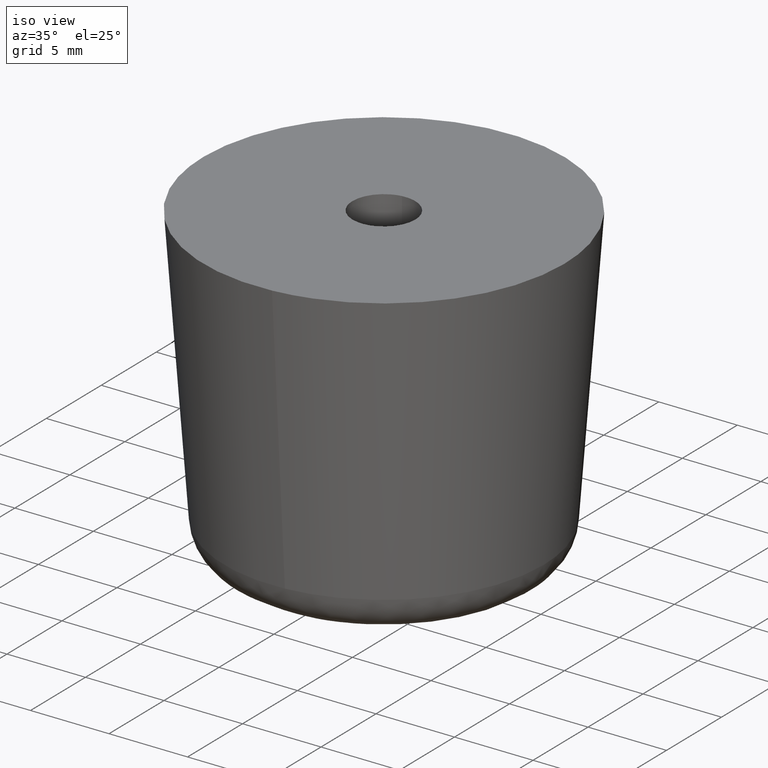
[diagram: clean part render]
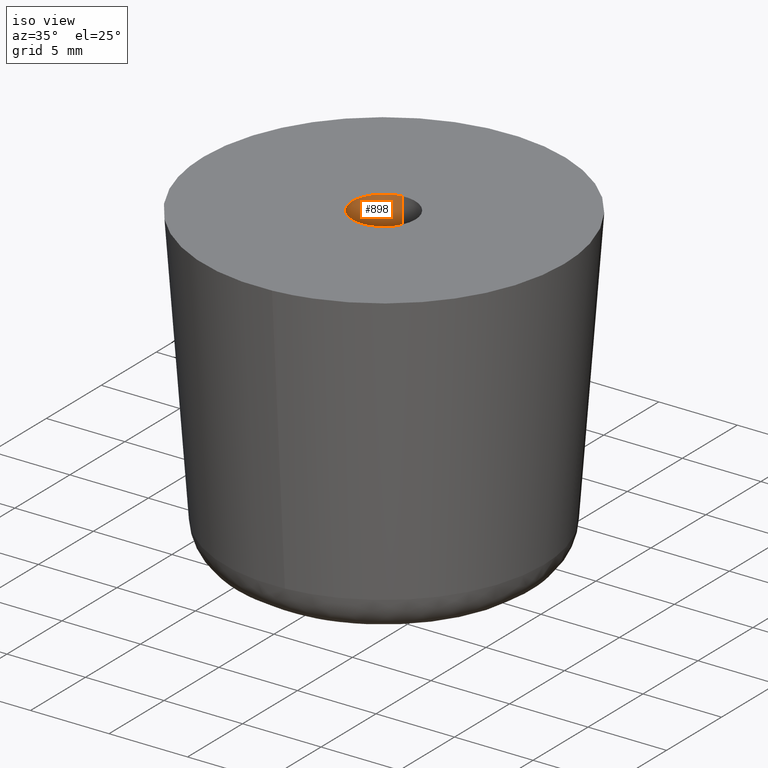
[diagram: same view with one face highlighted and labeled with its STEP entity id]
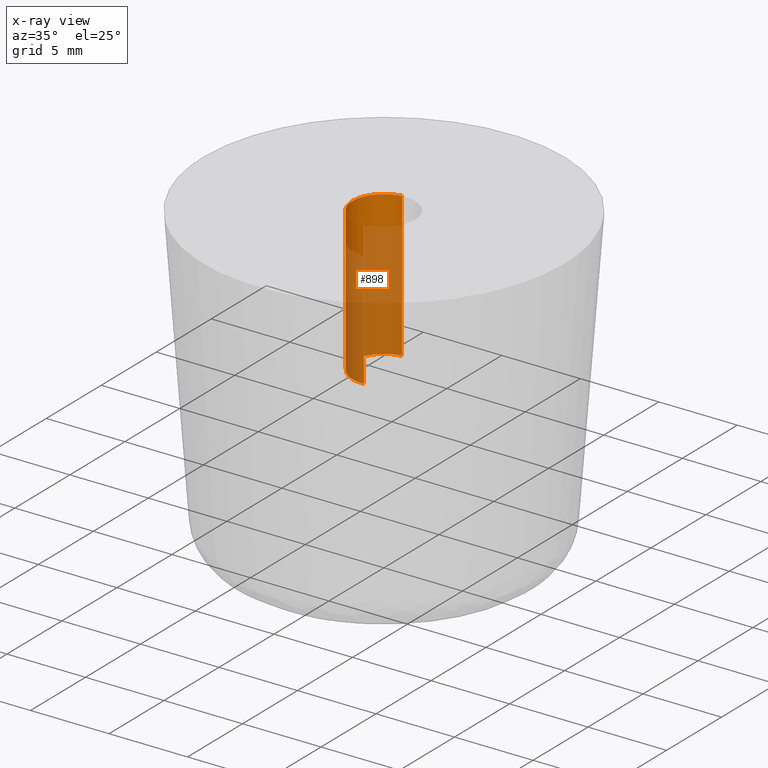
[diagram: x-ray of the same camera — body ghosted, the highlighted face saturated]
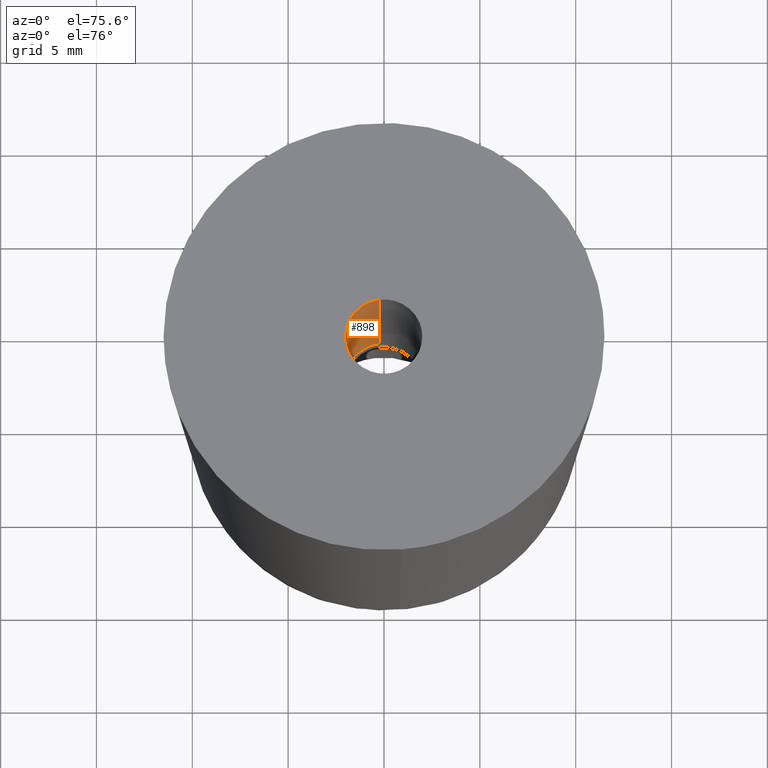
[diagram: same view with one face highlighted and labeled with its STEP entity id]
A machine part, iso view. The second image highlights one B-rep face of the part: STEP entity #898.
The next image is the same camera in x-ray: the body ghosted, the highlighted face saturated — about 77% of this face is hidden behind the body in this view.
A second angle (auxiliary view) of the same face is appended — the face is thin or edge-on in the first view.
In plain terms, the highlighted face is a freeform B-spline surface patch.
Its self-contained STEP definition (entity closure, byte-faithful):
#735=CARTESIAN_POINT('',(-0.236065886624471,1.986019359715669,20.000000000000011));
#736=VERTEX_POINT('',#735);
#754=CARTESIAN_POINT('',(-0.236065917800784,1.986019356009974,10.799999999999800));
#755=VERTEX_POINT('',#754);
#756=CARTESIAN_POINT('',(-0.236065886624471,1.986019359715669,20.000000000000011));
#757=CARTESIAN_POINT('',(-0.236065917800784,1.986019356009974,10.799999999999800));
#758=QUASI_UNIFORM_CURVE('',1,(#756,#757),.UNSPECIFIED.,.F.,.U.);
#759=EDGE_CURVE('',#736,#755,#758,.T.);
#778=CARTESIAN_POINT('',(0.122097079102479,-1.996269596841730,10.799999999999800));
#779=VERTEX_POINT('',#778);
#793=CARTESIAN_POINT('',(0.122097079102479,-1.996269596841730,20.0));
#794=VERTEX_POINT('',#793);
#795=CARTESIAN_POINT('',(0.122097079102479,-1.996269596841730,20.0));
#796=CARTESIAN_POINT('',(0.122097079102479,-1.996269596841730,10.799999999999800));
#797=QUASI_UNIFORM_CURVE('',1,(#795,#796),.UNSPECIFIED.,.F.,.U.);
#798=EDGE_CURVE('',#794,#779,#797,.T.);
#816=CARTESIAN_POINT('',(0.122097079069714,-1.996269596843733,20.230000000000011));
#817=CARTESIAN_POINT('',(-1.874172517774020,-2.118366675913447,20.230000000000004));
#818=CARTESIAN_POINT('',(-1.996269596843733,-0.122097079069714,20.230000000000011));
#819=CARTESIAN_POINT('',(-2.111572393465055,1.763086981679002,20.230000000000008));
#820=CARTESIAN_POINT('',(-0.236068469313517,1.986019052727332,20.230000000000015));
#821=CARTESIAN_POINT('',(0.122097079069714,-1.996269596843733,10.564249999999790));
#822=CARTESIAN_POINT('',(-1.874172517774020,-2.118366675913447,10.564249999999793));
#823=CARTESIAN_POINT('',(-1.996269596843733,-0.122097079069714,10.564249999999790));
#824=CARTESIAN_POINT('',(-2.111572393465055,1.763086981679002,10.564249999999793));
#825=CARTESIAN_POINT('',(-0.236068469313517,1.986019052727332,10.564249999999797));
#833=(BOUNDED_SURFACE()B_SPLINE_SURFACE(2,1,((#816,#821),(#817,#822),(#818,#823),(#819,#824),(#820,#825)),.UNSPECIFIED.,.F.,.F.,.U.)B_SPLINE_SURFACE_WITH_KNOTS((3,2,3),(2,2),(0.0,3.313708498984759,6.494868658010128),(0.0,9.665750000000216),.UNSPECIFIED.)GEOMETRIC_REPRESENTATION_ITEM()RATIONAL_B_SPLINE_SURFACE(((1.0,1.0),(0.707106781186548,0.707106781186548),(1.0,1.0),(0.718822509939086,0.718822509939086),(0.977505800795127,0.977505800795127)))REPRESENTATION_ITEM('')SURFACE());
#834=CARTESIAN_POINT('',(-2.0,0.0,20.0));
#835=VERTEX_POINT('',#834);
#836=CARTESIAN_POINT('',(-2.0,0.0,20.0));
#837=CARTESIAN_POINT('',(-2.000000000000000,1.776351378192379,20.0));
#838=CARTESIAN_POINT('',(-0.236065886624471,1.986019359715669,20.000000000000014));
#846=(BOUNDED_CURVE()B_SPLINE_CURVE(2,(#836,#837,#838),.UNSPECIFIED.,.F.,.U.)B_SPLINE_CURVE_WITH_KNOTS((3,3),(0.0,0.229562693293432),.UNSPECIFIED.)CURVE()GEOMETRIC_REPRESENTATION_ITEM()RATIONAL_B_SPLINE_CURVE((1.0,0.731050575367205,0.956027184961797))REPRESENTATION_ITEM(''));
#847=EDGE_CURVE('',#835,#736,#846,.T.);
#848=ORIENTED_EDGE('',*,*,#847,.F.);
#849=CARTESIAN_POINT('',(0.122097079102479,-1.996269596841730,20.0));
#850=CARTESIAN_POINT('',(0.061105526630035,-2.0,20.0));
#851=CARTESIAN_POINT('',(0.0,-2.0,20.0));
#852=CARTESIAN_POINT('',(-2.000000000000000,-2.000000000000000,19.999999999999996));
#853=CARTESIAN_POINT('',(-2.0,0.0,20.0));
#861=(BOUNDED_CURVE()B_SPLINE_CURVE(2,(#849,#850,#851,#852,#853),.UNSPECIFIED.,.F.,.U.)B_SPLINE_CURVE_WITH_KNOTS((3,2,3),(0.739332962236304,0.750000000000000,1.0),.UNSPECIFIED.)CURVE()GEOMETRIC_REPRESENTATION_ITEM()RATIONAL_B_SPLINE_CURVE((0.976072041661062,0.987502787896746,1.0,0.707106781186548,1.0))REPRESENTATION_ITEM(''));
#862=EDGE_CURVE('',#794,#835,#861,.T.);
#863=ORIENTED_EDGE('',*,*,#862,.F.);
#864=ORIENTED_EDGE('',*,*,#798,.T.);
#865=CARTESIAN_POINT('',(-2.0,0.0,10.799999999999800));
#866=VERTEX_POINT('',#865);
#867=CARTESIAN_POINT('',(0.122097079102479,-1.996269596841730,10.799999999999802));
#868=CARTESIAN_POINT('',(0.061105526630035,-2.0,10.799999999999800));
#869=CARTESIAN_POINT('',(0.0,-2.0,10.799999999999800));
#870=CARTESIAN_POINT('',(-2.000000000000000,-2.000000000000000,10.799999999999800));
#871=CARTESIAN_POINT('',(-2.0,0.0,10.799999999999800));
#879=(BOUNDED_CURVE()B_SPLINE_CURVE(2,(#867,#868,#869,#870,#871),.UNSPECIFIED.,.F.,.U.)B_SPLINE_CURVE_WITH_KNOTS((3,2,3),(0.739332962236304,0.750000000000000,1.0),.UNSPECIFIED.)CURVE()GEOMETRIC_REPRESENTATION_ITEM()RATIONAL_B_SPLINE_CURVE((0.976072041661062,0.987502787896746,1.0,0.707106781186548,1.0))REPRESENTATION_ITEM(''));
#880=EDGE_CURVE('',#779,#866,#879,.T.);
#881=ORIENTED_EDGE('',*,*,#880,.T.);
#882=CARTESIAN_POINT('',(-2.0,0.0,10.799999999999800));
#883=CARTESIAN_POINT('',(-2.000000000000000,1.776351350111119,10.799999999999800));
#884=CARTESIAN_POINT('',(-0.236065917800784,1.986019356009974,10.799999999999798));
#892=(BOUNDED_CURVE()B_SPLINE_CURVE(2,(#882,#883,#884),.UNSPECIFIED.,.F.,.U.)B_SPLINE_CURVE_WITH_KNOTS((3,3),(0.0,0.229562690640437),.UNSPECIFIED.)CURVE()GEOMETRIC_REPRESENTATION_ITEM()RATIONAL_B_SPLINE_CURVE((1.0,0.731050578475383,0.956027179761807))REPRESENTATION_ITEM(''));
#893=EDGE_CURVE('',#866,#755,#892,.T.);
#894=ORIENTED_EDGE('',*,*,#893,.T.);
#895=ORIENTED_EDGE('',*,*,#759,.F.);
#896=EDGE_LOOP('',(#848,#863,#864,#881,#894,#895));
#897=FACE_OUTER_BOUND('',#896,.T.);
#898=ADVANCED_FACE('',(#897),#833,.F.);